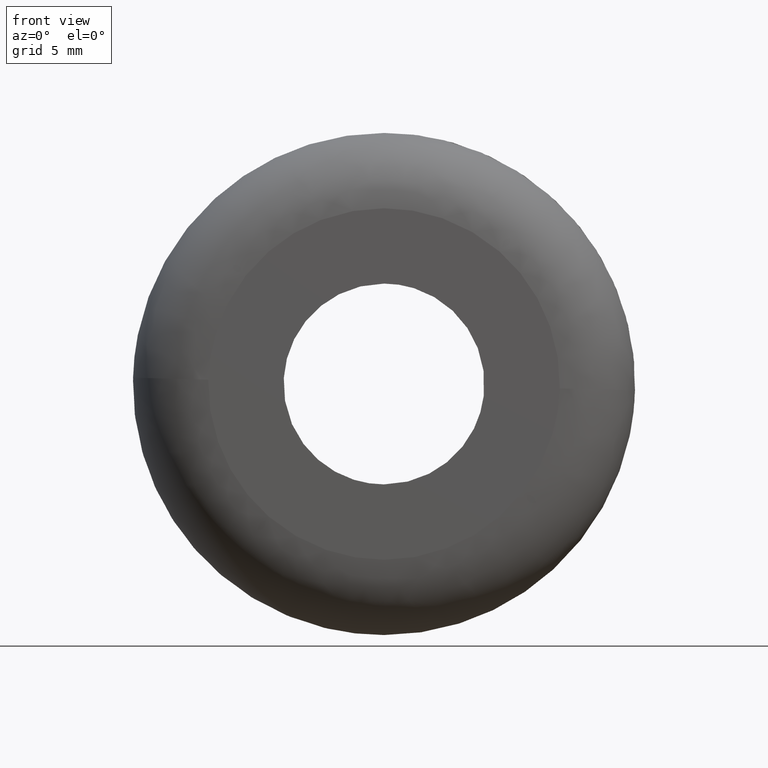
[diagram: clean part render]
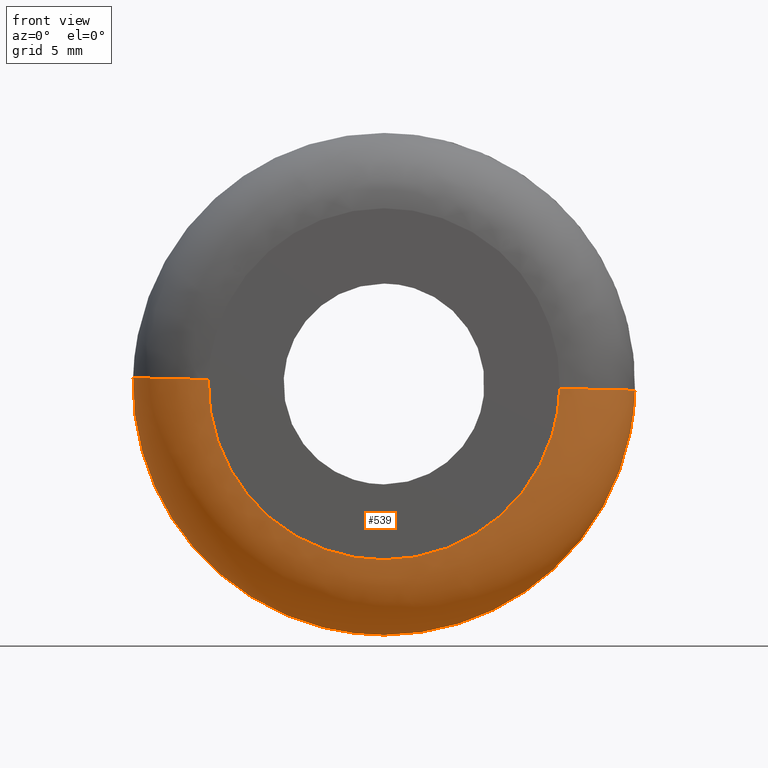
[diagram: same view with one face highlighted and labeled with its STEP entity id]
A machine part, front view. The second image highlights one B-rep face of the part: STEP entity #539.
In plain terms, the highlighted face is a freeform B-spline surface patch.
Its self-contained STEP definition (entity closure, byte-faithful):
#420=CARTESIAN_POINT('',(-9.989543121437887,3.209172553633379,0.251117477667668));
#421=CARTESIAN_POINT('',(-10.240660599105558,3.209172553633380,-9.738425643770217));
#422=CARTESIAN_POINT('',(-0.251117477667671,3.209172553633379,-9.989543121437887));
#423=CARTESIAN_POINT('',(9.738425643770217,3.209172553633380,-10.240660599105560));
#424=CARTESIAN_POINT('',(9.989543121437887,3.209172553633379,-0.251117477667672));
#425=CARTESIAN_POINT('',(-10.229985953123554,-0.232007044478159,0.257161737818726));
#426=CARTESIAN_POINT('',(-10.487147690942281,-0.232007044478159,-9.972824215304826));
#427=CARTESIAN_POINT('',(-0.257161737818728,-0.232007044478159,-10.229985953123554));
#428=CARTESIAN_POINT('',(9.972824215304826,-0.232007044478159,-10.487147690942281));
#429=CARTESIAN_POINT('',(10.229985953123554,-0.232007044478159,-0.257161737818729));
#430=CARTESIAN_POINT('',(-6.789803307728222,0.007222948350152,0.170682308466864));
#431=CARTESIAN_POINT('',(-6.960485616195088,0.007222948350151,-6.619120999261356));
#432=CARTESIAN_POINT('',(-0.170682308466866,0.007222948350152,-6.789803307728222));
#433=CARTESIAN_POINT('',(6.619120999261356,0.007222948350151,-6.960485616195088));
#434=CARTESIAN_POINT('',(6.789803307728222,0.007222948350152,-0.170682308466866));
#442=(BOUNDED_SURFACE()B_SPLINE_SURFACE(2,2,((#420,#425,#430),(#421,#426,#431),(#422,#427,#432),(#423,#428,#433),(#424,#429,#434)),.UNSPECIFIED.,.F.,.F.,.U.)B_SPLINE_SURFACE_WITH_KNOTS((3,2,3),(3,3),(0.0,16.556445674216121,33.112891348432242),(0.0,5.467110975578632),.UNSPECIFIED.)GEOMETRIC_REPRESENTATION_ITEM()RATIONAL_B_SPLINE_SURFACE(((0.910892941386805,0.599412934105556,0.915966621324616),(0.644098575789570,0.423848950436964,0.647686209279166),(0.910892941386805,0.599412934105556,0.915966621324616),(0.644098575789570,0.423848950436964,0.647686209279166),(0.910892941386805,0.599412934105556,0.915966621324616)))REPRESENTATION_ITEM('')SURFACE());
#443=CARTESIAN_POINT('',(-9.996841892832897,2.999999999971457,0.251300954437361));
#444=VERTEX_POINT('',#443);
#445=CARTESIAN_POINT('',(0.0,3.0,-10.0));
#446=VERTEX_POINT('',#445);
#447=CARTESIAN_POINT('',(-9.996841892832897,2.999999999971457,0.251300954437361));
#448=CARTESIAN_POINT('',(-10.000000000000002,3.000000000000000,0.125670321237784));
#449=CARTESIAN_POINT('',(-10.0,3.0,-1.836910E-016));
#450=CARTESIAN_POINT('',(-10.000000000000002,3.0,-10.000000000000002));
#451=CARTESIAN_POINT('',(0.0,3.0,-10.0));
#459=(BOUNDED_CURVE()B_SPLINE_CURVE(2,(#447,#448,#449,#450,#451),.UNSPECIFIED.,.F.,.U.)B_SPLINE_CURVE_WITH_KNOTS((3,2,3),(0.745579891769668,0.750000000000000,1.0),.UNSPECIFIED.)CURVE()GEOMETRIC_REPRESENTATION_ITEM()RATIONAL_B_SPLINE_CURVE((0.989826157681261,0.994821521091657,1.0,0.707106781186548,1.0))REPRESENTATION_ITEM(''));
#460=EDGE_CURVE('',#444,#446,#459,.T.);
#461=ORIENTED_EDGE('',*,*,#460,.T.);
#462=CARTESIAN_POINT('',(9.996841892832897,2.999999999971457,-0.251300954437362));
#463=VERTEX_POINT('',#462);
#464=CARTESIAN_POINT('',(0.0,3.0,-10.0));
#465=CARTESIAN_POINT('',(9.751778761798706,3.000000000000000,-10.0));
#466=CARTESIAN_POINT('',(9.996841892832897,2.999999999971457,-0.251300954437362));
#474=(BOUNDED_CURVE()B_SPLINE_CURVE(2,(#464,#465,#466),.UNSPECIFIED.,.F.,.U.)B_SPLINE_CURVE_WITH_KNOTS((3,3),(0.0,0.245579891769668),.UNSPECIFIED.)CURVE()GEOMETRIC_REPRESENTATION_ITEM()RATIONAL_B_SPLINE_CURVE((1.0,0.712285260094891,0.989826157681261))REPRESENTATION_ITEM(''));
#475=EDGE_CURVE('',#446,#463,#474,.T.);
#476=ORIENTED_EDGE('',*,*,#475,.T.);
#477=CARTESIAN_POINT('',(6.997789325016047,-1.038440E-016,-0.175910668105941));
#478=VERTEX_POINT('',#477);
#479=CARTESIAN_POINT('',(9.996841892832897,2.999999999971456,-0.251300954437362));
#480=CARTESIAN_POINT('',(9.996841892775928,6.600574E-011,-0.251300954431939));
#481=CARTESIAN_POINT('',(6.997789325016048,-1.038440E-016,-0.175910668105941));
#489=(BOUNDED_CURVE()B_SPLINE_CURVE(2,(#479,#480,#481),.UNSPECIFIED.,.F.,.U.)B_SPLINE_CURVE_WITH_KNOTS((3,3),(-1.723441281965177,-0.263586878950601),.UNSPECIFIED.)CURVE()GEOMETRIC_REPRESENTATION_ITEM()RATIONAL_B_SPLINE_CURVE((0.883897567131759,0.626638727245067,0.888510409054381))REPRESENTATION_ITEM(''));
#490=EDGE_CURVE('',#463,#478,#489,.T.);
#491=ORIENTED_EDGE('',*,*,#490,.T.);
#492=CARTESIAN_POINT('',(0.0,-1.332268E-015,-7.0));
#493=VERTEX_POINT('',#492);
#494=CARTESIAN_POINT('',(0.0,-1.332268E-015,-7.0));
#495=CARTESIAN_POINT('',(6.826245133261127,-1.332268E-015,-7.0));
#496=CARTESIAN_POINT('',(6.997789325016048,-1.038440E-016,-0.175910668105941));
#504=(BOUNDED_CURVE()B_SPLINE_CURVE(2,(#494,#495,#496),.UNSPECIFIED.,.F.,.U.)B_SPLINE_CURVE_WITH_KNOTS((3,3),(0.0,0.245579891769720),.UNSPECIFIED.)CURVE()GEOMETRIC_REPRESENTATION_ITEM()RATIONAL_B_SPLINE_CURVE((1.0,0.712285260094830,0.989826157681378))REPRESENTATION_ITEM(''));
#505=EDGE_CURVE('',#493,#478,#504,.T.);
#506=ORIENTED_EDGE('',*,*,#505,.F.);
#507=CARTESIAN_POINT('',(-6.997789325016046,-1.038440E-016,0.175910668105943));
#508=VERTEX_POINT('',#507);
#509=CARTESIAN_POINT('',(-6.997789325016046,-1.038440E-016,0.175910668105943));
#510=CARTESIAN_POINT('',(-6.999999999999999,-1.332268E-015,0.087969224865409));
#511=CARTESIAN_POINT('',(-7.0,-1.332268E-015,-1.836910E-016));
#512=CARTESIAN_POINT('',(-6.999999999999999,-1.332268E-015,-6.999999999999999));
#513=CARTESIAN_POINT('',(0.0,-1.332268E-015,-7.0));
#521=(BOUNDED_CURVE()B_SPLINE_CURVE(2,(#509,#510,#511,#512,#513),.UNSPECIFIED.,.F.,.U.)B_SPLINE_CURVE_WITH_KNOTS((3,2,3),(0.745579891769720,0.750000000000000,1.0),.UNSPECIFIED.)CURVE()GEOMETRIC_REPRESENTATION_ITEM()RATIONAL_B_SPLINE_CURVE((0.989826157681378,0.994821521091718,1.0,0.707106781186547,1.0))REPRESENTATION_ITEM(''));
#522=EDGE_CURVE('',#508,#493,#521,.T.);
#523=ORIENTED_EDGE('',*,*,#522,.F.);
#524=CARTESIAN_POINT('',(-9.996841892832897,2.999999999971456,0.251300954437361));
#525=CARTESIAN_POINT('',(-9.996841892775928,6.600574E-011,0.251300954431940));
#526=CARTESIAN_POINT('',(-6.997789325016046,-1.038440E-016,0.175910668105943));
#534=(BOUNDED_CURVE()B_SPLINE_CURVE(2,(#524,#525,#526),.UNSPECIFIED.,.F.,.U.)B_SPLINE_CURVE_WITH_KNOTS((3,3),(-1.723441281965177,-0.263586878950601),.UNSPECIFIED.)CURVE()GEOMETRIC_REPRESENTATION_ITEM()RATIONAL_B_SPLINE_CURVE((0.883897567131759,0.626638727245067,0.888510409054381))REPRESENTATION_ITEM(''));
#535=EDGE_CURVE('',#444,#508,#534,.T.);
#536=ORIENTED_EDGE('',*,*,#535,.F.);
#537=EDGE_LOOP('',(#461,#476,#491,#506,#523,#536));
#538=FACE_OUTER_BOUND('',#537,.T.);
#539=ADVANCED_FACE('',(#538),#442,.T.);